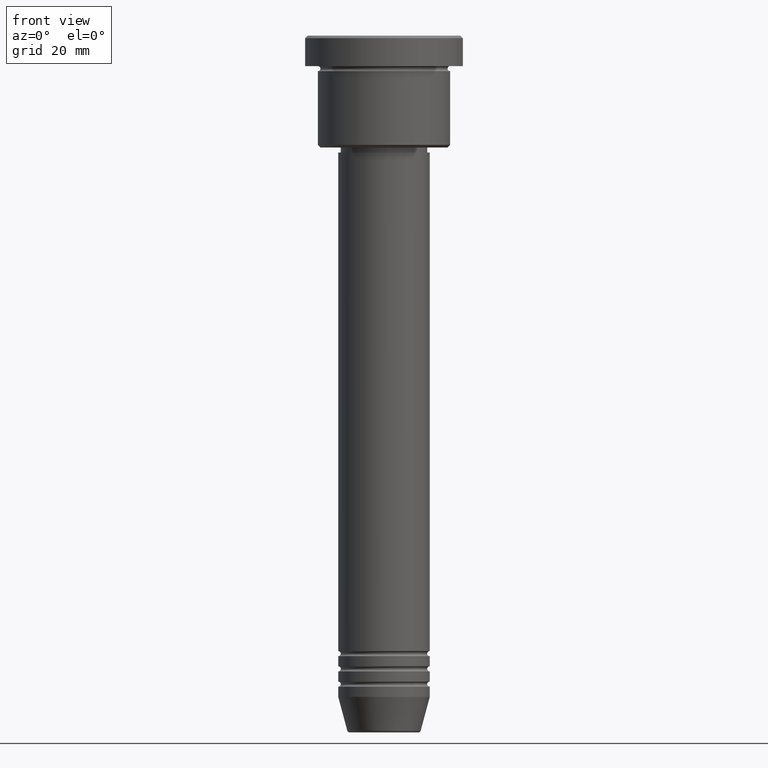
[diagram: clean part render]
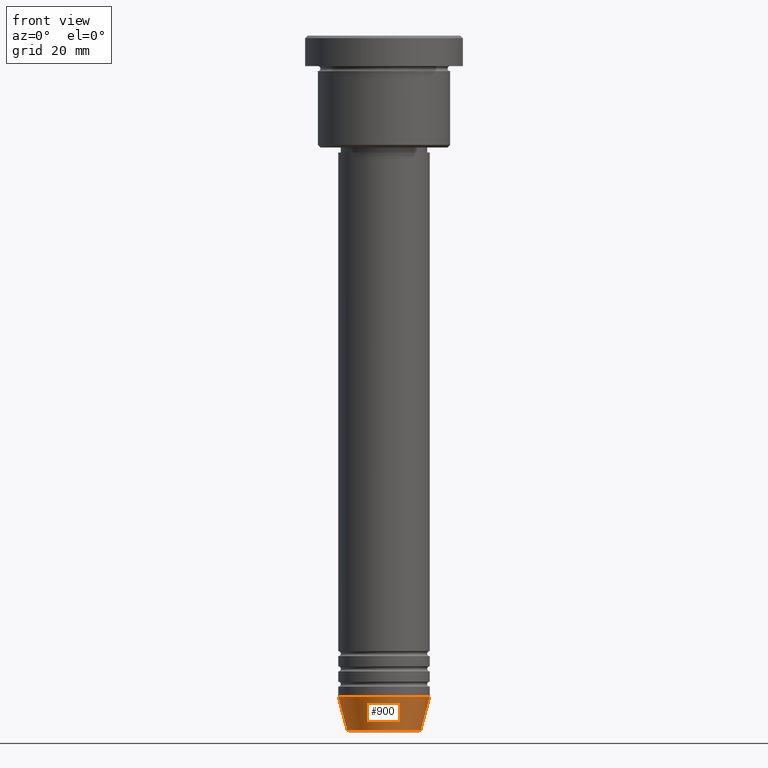
[diagram: same view with one face highlighted and labeled with its STEP entity id]
A machine part, front view. The second image highlights one B-rep face of the part: STEP entity #900.
In plain terms, the highlighted conical surface has half-angle 15 deg.
Its self-contained STEP definition (entity closure, byte-faithful):
#14 = AXIS2_PLACEMENT_3D ( 'NONE', #94, #207, #293 ) ;
#86 = ORIENTED_EDGE ( 'NONE', *, *, #131, .T. ) ;
#94 = CARTESIAN_POINT ( 'NONE',  ( 0.000000000000000000, 0.000000000000000000, -136.6294095225512990 ) ) ;
#127 = ORIENTED_EDGE ( 'NONE', *, *, #231, .F. ) ;
#131 = EDGE_CURVE ( 'NONE', #1019, #241, #678, .T. ) ;
#207 = DIRECTION ( 'NONE',  ( -0.000000000000000000, -0.000000000000000000, 1.000000000000000000 ) ) ;
#217 = AXIS2_PLACEMENT_3D ( 'NONE', #887, #1164, #555 ) ;
#231 = EDGE_CURVE ( 'NONE', #419, #567, #699, .T. ) ;
#241 = VERTEX_POINT ( 'NONE', #893 ) ;
#291 = DIRECTION ( 'NONE',  ( 1.000000000000000000, 0.000000000000000000, 0.000000000000000000 ) ) ;
#293 = DIRECTION ( 'NONE',  ( 1.000000000000000000, 0.000000000000000000, 0.000000000000000000 ) ) ;
#315 = ORIENTED_EDGE ( 'NONE', *, *, #827, .T. ) ;
#360 = DIRECTION ( 'NONE',  ( 0.2588190451025213501, 0.000000000000000000, 0.9659258262890680902 ) ) ;
#415 = VECTOR ( 'NONE', #808, 1000.000000000000000 ) ;
#419 = VERTEX_POINT ( 'NONE', #933 ) ;
#442 = CARTESIAN_POINT ( 'NONE',  ( 9.000000000000000000, 0.000000000000000000, -130.0000000000000000 ) ) ;
#464 = ORIENTED_EDGE ( 'NONE', *, *, #1069, .F. ) ;
#466 = CARTESIAN_POINT ( 'NONE',  ( -7.223655072137189492, 9.934123627281765110E-16, -136.6294095225512990 ) ) ;
#467 = CARTESIAN_POINT ( 'NONE',  ( 0.000000000000000000, 0.000000000000000000, -130.0000000000000000 ) ) ;
#535 = LINE ( 'NONE', #442, #715 ) ;
#555 = DIRECTION ( 'NONE',  ( 1.000000000000000000, 0.000000000000000000, 0.000000000000000000 ) ) ;
#559 = DIRECTION ( 'NONE',  ( -0.000000000000000000, -0.000000000000000000, 1.000000000000000000 ) ) ;
#567 = VERTEX_POINT ( 'NONE', #1072 ) ;
#678 = CIRCLE ( 'NONE', #14, 7.223655072137188604 ) ;
#699 = CIRCLE ( 'NONE', #217, 9.000000000000000000 ) ;
#715 = VECTOR ( 'NONE', #360, 1000.000000000000000 ) ;
#801 = CARTESIAN_POINT ( 'NONE',  ( -9.000000000000000000, 1.102182119232617714E-15, -130.0000000000000000 ) ) ;
#808 = DIRECTION ( 'NONE',  ( -0.2588190451025213501, 3.169619151431772337E-17, 0.9659258262890680902 ) ) ;
#827 = EDGE_CURVE ( 'NONE', #241, #567, #535, .T. ) ;
#857 = AXIS2_PLACEMENT_3D ( 'NONE', #467, #559, #291 ) ;
#887 = CARTESIAN_POINT ( 'NONE',  ( 0.000000000000000000, 0.000000000000000000, -130.0000000000000000 ) ) ;
#893 = CARTESIAN_POINT ( 'NONE',  ( 7.223655072137188604, 0.000000000000000000, -136.6294095225512990 ) ) ;
#900 = ADVANCED_FACE ( 'NONE', ( #918 ), #1081, .T. ) ;
#918 = FACE_OUTER_BOUND ( 'NONE', #1096, .T. ) ;
#933 = CARTESIAN_POINT ( 'NONE',  ( -9.000000000000000000, 1.102182119232617714E-15, -130.0000000000000000 ) ) ;
#1015 = LINE ( 'NONE', #801, #415 ) ;
#1019 = VERTEX_POINT ( 'NONE', #466 ) ;
#1069 = EDGE_CURVE ( 'NONE', #1019, #419, #1015, .T. ) ;
#1072 = CARTESIAN_POINT ( 'NONE',  ( 9.000000000000000000, 0.000000000000000000, -130.0000000000000000 ) ) ;
#1081 = CONICAL_SURFACE ( 'NONE', #857, 9.000000000000000000, 0.2617993877991500740 ) ;
#1096 = EDGE_LOOP ( 'NONE', ( #464, #86, #315, #127 ) ) ;
#1164 = DIRECTION ( 'NONE',  ( -0.000000000000000000, -0.000000000000000000, 1.000000000000000000 ) ) ;